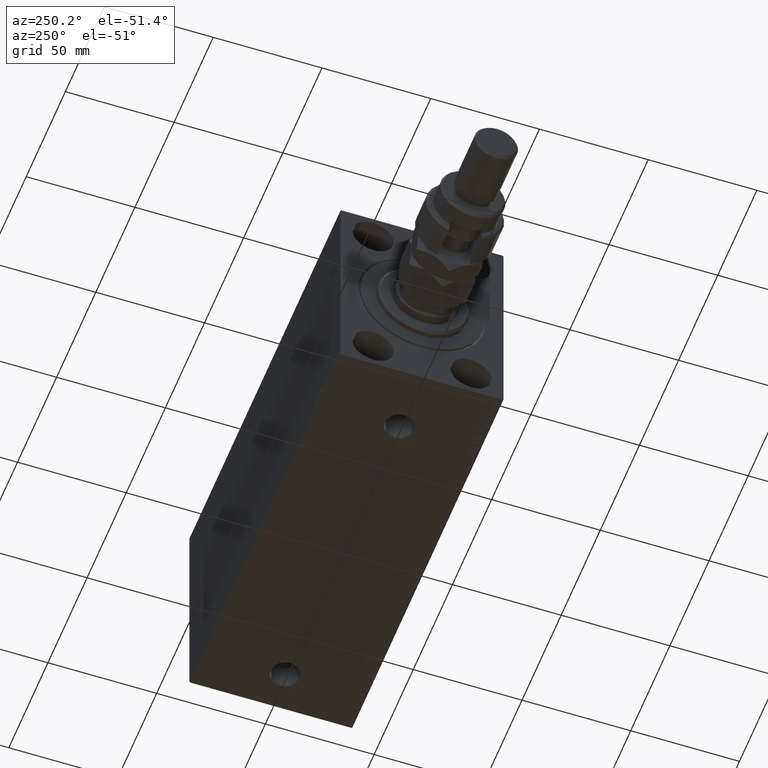
[diagram: clean part render]
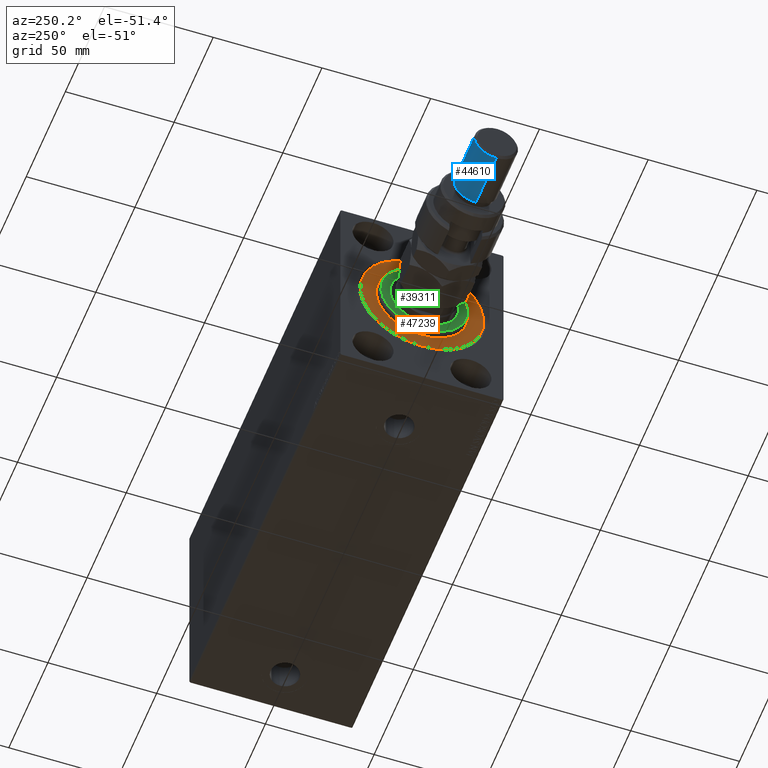
[diagram: same view with three faces highlighted in distinct colors, each labeled with its STEP entity id]
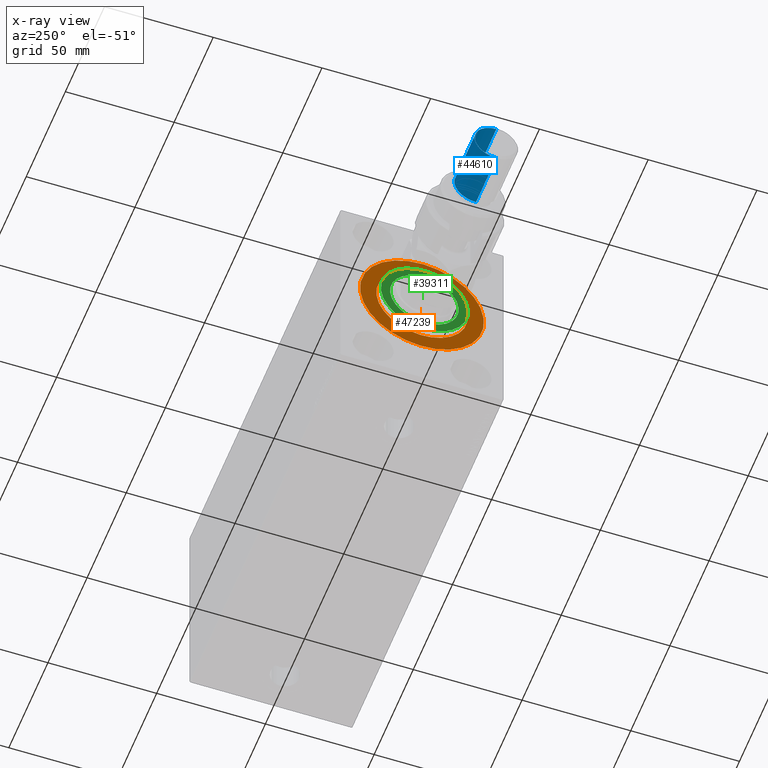
[diagram: x-ray of the same camera — body ghosted, the three highlighted faces saturated]
A machine part, auxiliary view with three faces highlighted in distinct colors.
The next image is the same camera in x-ray (body ghosted, the three faces saturated) — at least one of them is partly hidden behind the body in this view.
Their STEP definitions:

[orange] entity #47239 — the highlighted planar face has unit normal (1, 0, -0).
#3157 = FACE_OUTER_BOUND ( 'NONE', #47361, .T. ) ;
#3300 = ORIENTED_EDGE ( 'NONE', *, *, #25235, .F. ) ;
#3396 = DIRECTION ( 'NONE',  ( 0.000000000000000000, 0.000000000000000000, 1.000000000000000000 ) ) ;
#5179 = VERTEX_POINT ( 'NONE', #46796 ) ;
#5381 = VERTEX_POINT ( 'NONE', #16474 ) ;
#6305 = VERTEX_POINT ( 'NONE', #19003 ) ;
#6361 = AXIS2_PLACEMENT_3D ( 'NONE', #20215, #46272, #46526 ) ;
#6562 = PLANE ( 'NONE',  #29556 ) ;
#7049 = CARTESIAN_POINT ( 'NONE',  ( 0.000000000000000000, 0.000000000000000000, 0.000000000000000000 ) ) ;
#8663 = ORIENTED_EDGE ( 'NONE', *, *, #9745, .F. ) ;
#8719 = AXIS2_PLACEMENT_3D ( 'NONE', #38550, #34648, #9097 ) ;
#9097 = DIRECTION ( 'NONE',  ( 0.000000000000000000, 0.000000000000000000, -1.000000000000000000 ) ) ;
#9745 = EDGE_CURVE ( 'NONE', #5179, #6305, #46446, .T. ) ;
#11759 = ORIENTED_EDGE ( 'NONE', *, *, #26721, .F. ) ;
#13410 = CARTESIAN_POINT ( 'NONE',  ( 0.000000000000000000, 0.000000000000000000, 0.000000000000000000 ) ) ;
#15412 = DIRECTION ( 'NONE',  ( 0.000000000000000000, 0.000000000000000000, 1.000000000000000000 ) ) ;
#16329 = CIRCLE ( 'NONE', #36565, 28.50000000000000000 ) ;
#16474 = CARTESIAN_POINT ( 'NONE',  ( 0.000000000000000000, 0.000000000000000000, -28.50000000000000000 ) ) ;
#16995 = CARTESIAN_POINT ( 'NONE',  ( 0.000000000000000000, 3.490243377569956456E-15, 28.50000000000000000 ) ) ;
#19003 = CARTESIAN_POINT ( 'NONE',  ( 0.000000000000000000, 2.571758278209441661E-15, -21.00000000000000000 ) ) ;
#20215 = CARTESIAN_POINT ( 'NONE',  ( 0.000000000000000000, 0.000000000000000000, 0.000000000000000000 ) ) ;
#20793 = AXIS2_PLACEMENT_3D ( 'NONE', #13410, #36268, #28248 ) ;
#22011 = EDGE_CURVE ( 'NONE', #5381, #34796, #16329, .T. ) ;
#25235 = EDGE_CURVE ( 'NONE', #34796, #5381, #27331, .T. ) ;
#26721 = EDGE_CURVE ( 'NONE', #6305, #5179, #36717, .T. ) ;
#27331 = CIRCLE ( 'NONE', #6361, 28.50000000000000000 ) ;
#28248 = DIRECTION ( 'NONE',  ( 0.000000000000000000, 0.000000000000000000, -1.000000000000000000 ) ) ;
#29556 = AXIS2_PLACEMENT_3D ( 'NONE', #7049, #43811, #3396 ) ;
#30015 = CARTESIAN_POINT ( 'NONE',  ( 0.000000000000000000, 0.000000000000000000, 0.000000000000000000 ) ) ;
#32037 = EDGE_LOOP ( 'NONE', ( #8663, #11759 ) ) ;
#34648 = DIRECTION ( 'NONE',  ( 1.000000000000000000, -0.000000000000000000, 0.000000000000000000 ) ) ;
#34796 = VERTEX_POINT ( 'NONE', #16995 ) ;
#35719 = ORIENTED_EDGE ( 'NONE', *, *, #22011, .F. ) ;
#36268 = DIRECTION ( 'NONE',  ( 1.000000000000000000, -0.000000000000000000, 0.000000000000000000 ) ) ;
#36565 = AXIS2_PLACEMENT_3D ( 'NONE', #30015, #44884, #15412 ) ;
#36717 = CIRCLE ( 'NONE', #8719, 21.00000000000000000 ) ;
#38550 = CARTESIAN_POINT ( 'NONE',  ( 0.000000000000000000, 0.000000000000000000, 0.000000000000000000 ) ) ;
#43811 = DIRECTION ( 'NONE',  ( -1.000000000000000000, 0.000000000000000000, 0.000000000000000000 ) ) ;
#44884 = DIRECTION ( 'NONE',  ( -1.000000000000000000, 0.000000000000000000, 0.000000000000000000 ) ) ;
#46272 = DIRECTION ( 'NONE',  ( -1.000000000000000000, 0.000000000000000000, 0.000000000000000000 ) ) ;
#46446 = CIRCLE ( 'NONE', #20793, 21.00000000000000000 ) ;
#46526 = DIRECTION ( 'NONE',  ( 0.000000000000000000, 0.000000000000000000, 1.000000000000000000 ) ) ;
#46796 = CARTESIAN_POINT ( 'NONE',  ( 0.000000000000000000, 0.000000000000000000, 21.00000000000000000 ) ) ;
#46993 = FACE_BOUND ( 'NONE', #32037, .T. ) ;
#47239 = ADVANCED_FACE ( 'NONE', ( #46993, #3157 ), #6562, .F. ) ;
#47361 = EDGE_LOOP ( 'NONE', ( #35719, #3300 ) ) ;

[blue] entity #44610 — the highlighted cylindrical surface (edge-blend (fillet) strip) has radius 10 mm, axis along (1, -0, -0).
#2870 = AXIS2_PLACEMENT_3D ( 'NONE', #10674, #25516, #3371 ) ;
#3371 = DIRECTION ( 'NONE',  ( 1.000000000000000000, 0.000000000000000000, 0.000000000000000000 ) ) ;
#3726 = ORIENTED_EDGE ( 'NONE', *, *, #25584, .T. ) ;
#4477 = EDGE_CURVE ( 'NONE', #31269, #36486, #44210, .T. ) ;
#5555 = CIRCLE ( 'NONE', #29684, 10.00000000000000000 ) ;
#7261 = ORIENTED_EDGE ( 'NONE', *, *, #4477, .T. ) ;
#9214 = DIRECTION ( 'NONE',  ( 1.000000000000000000, 0.000000000000000000, 0.000000000000000000 ) ) ;
#9262 = FACE_OUTER_BOUND ( 'NONE', #44146, .T. ) ;
#10674 = CARTESIAN_POINT ( 'NONE',  ( 0.000000000000000000, 0.000000000000000000, 29.00000000000000711 ) ) ;
#11658 = VECTOR ( 'NONE', #34740, 1000.000000000000000 ) ;
#15354 = EDGE_CURVE ( 'NONE', #19728, #36486, #30846, .T. ) ;
#16228 = CARTESIAN_POINT ( 'NONE',  ( -10.00000000000000000, 0.000000000000000000, 29.00000000000000711 ) ) ;
#16554 = DIRECTION ( 'NONE',  ( -0.000000000000000000, -0.000000000000000000, -1.000000000000000000 ) ) ;
#17526 = CYLINDRICAL_SURFACE ( 'NONE', #17822, 10.00000000000000000 ) ;
#17822 = AXIS2_PLACEMENT_3D ( 'NONE', #27999, #16554, #31391 ) ;
#18607 = EDGE_CURVE ( 'NONE', #34439, #31269, #43812, .T. ) ;
#19728 = VERTEX_POINT ( 'NONE', #25976 ) ;
#23844 = ORIENTED_EDGE ( 'NONE', *, *, #18607, .T. ) ;
#25516 = DIRECTION ( 'NONE',  ( -0.000000000000000000, -0.000000000000000000, 1.000000000000000000 ) ) ;
#25584 = EDGE_CURVE ( 'NONE', #19728, #34439, #5555, .T. ) ;
#25976 = CARTESIAN_POINT ( 'NONE',  ( -10.00000000000000000, 0.000000000000000000, 54.99999999999998579 ) ) ;
#27999 = CARTESIAN_POINT ( 'NONE',  ( 0.000000000000000000, 0.000000000000000000, 56.00000000000000711 ) ) ;
#29684 = AXIS2_PLACEMENT_3D ( 'NONE', #45980, #42561, #9214 ) ;
#30846 = LINE ( 'NONE', #45722, #11658 ) ;
#31240 = ORIENTED_EDGE ( 'NONE', *, *, #15354, .F. ) ;
#31269 = VERTEX_POINT ( 'NONE', #32610 ) ;
#31391 = DIRECTION ( 'NONE',  ( -1.000000000000000000, 0.000000000000000000, 0.000000000000000000 ) ) ;
#32610 = CARTESIAN_POINT ( 'NONE',  ( 10.00000000000000000, 1.224646799147353256E-15, 29.00000000000000711 ) ) ;
#34439 = VERTEX_POINT ( 'NONE', #44613 ) ;
#34740 = DIRECTION ( 'NONE',  ( -0.000000000000000000, -0.000000000000000000, -1.000000000000000000 ) ) ;
#36486 = VERTEX_POINT ( 'NONE', #16228 ) ;
#37933 = DIRECTION ( 'NONE',  ( -0.000000000000000000, -0.000000000000000000, -1.000000000000000000 ) ) ;
#42016 = VECTOR ( 'NONE', #37933, 1000.000000000000000 ) ;
#42561 = DIRECTION ( 'NONE',  ( 0.000000000000000000, 0.000000000000000000, -1.000000000000000000 ) ) ;
#43812 = LINE ( 'NONE', #47959, #42016 ) ;
#44146 = EDGE_LOOP ( 'NONE', ( #3726, #23844, #7261, #31240 ) ) ;
#44210 = CIRCLE ( 'NONE', #2870, 10.00000000000000000 ) ;
#44610 = ADVANCED_FACE ( 'NONE', ( #9262 ), #17526, .T. ) ;
#44613 = CARTESIAN_POINT ( 'NONE',  ( 10.00000000000000000, 1.224646799147353256E-15, 54.99999999999998579 ) ) ;
#45722 = CARTESIAN_POINT ( 'NONE',  ( -10.00000000000000000, 0.000000000000000000, 56.00000000000000711 ) ) ;
#45980 = CARTESIAN_POINT ( 'NONE',  ( 0.000000000000000000, 0.000000000000000000, 54.99999999999998579 ) ) ;
#47959 = CARTESIAN_POINT ( 'NONE',  ( 10.00000000000000000, 1.224646799147353256E-15, 56.00000000000000711 ) ) ;

[green] entity #39311 — the highlighted planar face has unit normal (-1, 0, 0).
#2019 = AXIS2_PLACEMENT_3D ( 'NONE', #21458, #36305, #47768 ) ;
#3847 = CIRCLE ( 'NONE', #19419, 19.99999999999999645 ) ;
#3904 = CARTESIAN_POINT ( 'NONE',  ( 3.000000000000000000, 0.000000000000000000, 15.75000000000000000 ) ) ;
#4440 = AXIS2_PLACEMENT_3D ( 'NONE', #44873, #7868, #33660 ) ;
#5068 = EDGE_CURVE ( 'NONE', #40706, #44105, #37980, .T. ) ;
#5499 = VERTEX_POINT ( 'NONE', #44220 ) ;
#6393 = ORIENTED_EDGE ( 'NONE', *, *, #5068, .T. ) ;
#6548 = DIRECTION ( 'NONE',  ( 0.000000000000000000, 0.000000000000000000, -1.000000000000000000 ) ) ;
#7868 = DIRECTION ( 'NONE',  ( -1.000000000000000000, 0.000000000000000000, -0.000000000000000000 ) ) ;
#8323 = EDGE_CURVE ( 'NONE', #44105, #40706, #10622, .T. ) ;
#8363 = DIRECTION ( 'NONE',  ( 0.000000000000000000, 0.000000000000000000, -1.000000000000000000 ) ) ;
#10046 = ORIENTED_EDGE ( 'NONE', *, *, #8323, .T. ) ;
#10622 = CIRCLE ( 'NONE', #22326, 15.75000000000000000 ) ;
#10690 = CARTESIAN_POINT ( 'NONE',  ( 3.000000000000000000, 0.000000000000000000, 0.000000000000000000 ) ) ;
#10796 = VERTEX_POINT ( 'NONE', #40424 ) ;
#15059 = CARTESIAN_POINT ( 'NONE',  ( 3.000000000000000000, 0.000000000000000000, 0.000000000000000000 ) ) ;
#16797 = CIRCLE ( 'NONE', #2019, 19.99999999999999645 ) ;
#19333 = PLANE ( 'NONE',  #33967 ) ;
#19419 = AXIS2_PLACEMENT_3D ( 'NONE', #10690, #35765, #6548 ) ;
#20115 = ORIENTED_EDGE ( 'NONE', *, *, #38109, .T. ) ;
#21458 = CARTESIAN_POINT ( 'NONE',  ( 3.000000000000000000, 0.000000000000000000, 0.000000000000000000 ) ) ;
#22183 = ORIENTED_EDGE ( 'NONE', *, *, #45529, .T. ) ;
#22326 = AXIS2_PLACEMENT_3D ( 'NONE', #15059, #45011, #26493 ) ;
#25917 = FACE_OUTER_BOUND ( 'NONE', #28122, .T. ) ;
#26493 = DIRECTION ( 'NONE',  ( 0.000000000000000000, 0.000000000000000000, -1.000000000000000000 ) ) ;
#27091 = DIRECTION ( 'NONE',  ( 1.000000000000000000, -0.000000000000000000, 0.000000000000000000 ) ) ;
#27096 = EDGE_LOOP ( 'NONE', ( #6393, #10046 ) ) ;
#28122 = EDGE_LOOP ( 'NONE', ( #20115, #22183 ) ) ;
#33660 = DIRECTION ( 'NONE',  ( 0.000000000000000000, 0.000000000000000000, -1.000000000000000000 ) ) ;
#33967 = AXIS2_PLACEMENT_3D ( 'NONE', #41948, #27091, #8363 ) ;
#34395 = FACE_BOUND ( 'NONE', #27096, .T. ) ;
#35197 = CARTESIAN_POINT ( 'NONE',  ( 3.000000000000000000, 1.928818708657080950E-15, -15.75000000000000000 ) ) ;
#35765 = DIRECTION ( 'NONE',  ( 1.000000000000000000, -0.000000000000000000, 0.000000000000000000 ) ) ;
#36305 = DIRECTION ( 'NONE',  ( 1.000000000000000000, -0.000000000000000000, 0.000000000000000000 ) ) ;
#37980 = CIRCLE ( 'NONE', #4440, 15.75000000000000000 ) ;
#38109 = EDGE_CURVE ( 'NONE', #5499, #10796, #16797, .T. ) ;
#39311 = ADVANCED_FACE ( 'NONE', ( #25917, #34395 ), #19333, .T. ) ;
#40424 = CARTESIAN_POINT ( 'NONE',  ( 3.000000000000000000, 2.510525938252074087E-15, -19.99999999999999645 ) ) ;
#40706 = VERTEX_POINT ( 'NONE', #3904 ) ;
#41948 = CARTESIAN_POINT ( 'NONE',  ( 3.000000000000000000, 0.000000000000000000, 0.000000000000000000 ) ) ;
#44105 = VERTEX_POINT ( 'NONE', #35197 ) ;
#44220 = CARTESIAN_POINT ( 'NONE',  ( 3.000000000000000000, 0.000000000000000000, 19.99999999999999645 ) ) ;
#44873 = CARTESIAN_POINT ( 'NONE',  ( 3.000000000000000000, 0.000000000000000000, 0.000000000000000000 ) ) ;
#45011 = DIRECTION ( 'NONE',  ( -1.000000000000000000, 0.000000000000000000, -0.000000000000000000 ) ) ;
#45529 = EDGE_CURVE ( 'NONE', #10796, #5499, #3847, .T. ) ;
#47768 = DIRECTION ( 'NONE',  ( 0.000000000000000000, 0.000000000000000000, -1.000000000000000000 ) ) ;